MODEL slx_d1c34588551c
KIND model
BLOCK [Inport] ActualPathPos
  IconDisplay = Port number
  OutDataTypeStr = Bus: PathPos
  Port = 3
BLOCK [Inport] ActualTrajectoryPoint
  IconDisplay = Port number
  OutDataTypeStr = Bus: TrajectoryPoint
  Port = 4
BLOCK [BusCreator] Bus Creator
  DisplayOption = bar
  InheritFromInputs = on
  Inputs = 30
  Ports = [30, 1]
BLOCK [BusCreator] Bus Creator1
  DisplayOption = bar
  InheritFromInputs = on
  Inputs = 4
  Ports = [4, 1]
BLOCK [BusSelector] Bus Selector
  OutputAsBus = off
  OutputSignals = ax_mps2,ay_mps2
  Ports = [1, 2]
BLOCK [BusSelector] Bus Selector1
  OutputAsBus = off
  OutputSignals = LapCnt
  Ports = [1, 1]
BLOCK [BusSelector] Bus Selector2
  OutputAsBus = off
  OutputSignals = d_m,psi_rad
  Ports = [1, 2]
BLOCK [BusSelector] Bus Selector3
  OutputAsBus = off
  OutputSignals = v_mps,kappa_radpm
  Ports = [1, 2]
BLOCK [BusSelector] Bus Selector4
  OutputAsBus = off
  OutputSignals = v_mps,kappa_radpm
  Ports = [1, 2]
BLOCK [BusSelector] Bus Selector5
  OutputAsBus = off
  OutputSignals = LapCnt
  Ports = [1, 1]
BLOCK [BusSelector] Bus Selector6
  OutputAsBus = off
  OutputSignals = LapCnt
  Ports = [1, 1]
BLOCK [BusSelector] Bus Selector7
  OutputAsBus = off
  OutputSignals = RequestSteeringAngle_rad,RequestLongForce_N
  Ports = [1, 2]
BLOCK [SubSystem] CalcLapTime
  Ports = [1, 1]
  RequestExecContextInheritance = off
BLOCK [Outport] CalcLapTime/ActualLapTime_s
  IconDisplay = Port number
BLOCK [Constant] CalcLapTime/Constant1
  Value = tS
BLOCK [DiscreteIntegrator] CalcLapTime/Discrete-Time Integrator
  ExternalReset = rising
  ICPrevOutput = DiscIntNeverNeededParam
  ICPrevScaledInput = DiscIntNeverNeededParam
  InitialConditionSetting = Auto
  InitialConditionSource = external
  IntegratorMethod = Accumulation: Forward Euler
  Ports = [3, 1]
  SampleTime = -1
BLOCK [Inport] CalcLapTime/LapCounter
  IconDisplay = Port number
BLOCK [Sum] CalcLapTime/Sum
  IconShape = round
  InputSameDT = off
  Inputs = |+-
  OutDataTypeStr = Inherit: Inherit via internal rule
  Ports = [2, 1]
  SaturateOnIntegerOverflow = off
BLOCK [UnitDelay] CalcLapTime/Unit Delay
  InputProcessing = Elements as channels (sample based)
  SampleTime = -1
BLOCK [Reference] CalcPeak  REF=misc/CalcPeak  (lib defined in slx_2fe3b46eb0ca)
  Ports = [2, 1]
  SourceBlock = misc/CalcPeak
  SourceType = SubSystem
BLOCK [Reference] CalcPeak1  REF=misc/CalcPeak  (lib defined in slx_2fe3b46eb0ca)
  Ports = [2, 1]
  SourceBlock = misc/CalcPeak
  SourceType = SubSystem
BLOCK [Reference] CalcPeak2  REF=misc/CalcPeak  (lib defined in slx_2fe3b46eb0ca)
  Ports = [2, 1]
  SourceBlock = misc/CalcPeak
  SourceType = SubSystem
BLOCK [Reference] CalcPeak3  REF=misc/CalcPeak  (lib defined in slx_2fe3b46eb0ca)
  Ports = [2, 1]
  SourceBlock = misc/CalcPeak
  SourceType = SubSystem
BLOCK [Reference] CalcPeak4  REF=misc/CalcPeak  (lib defined in slx_2fe3b46eb0ca)
  Ports = [2, 1]
  SourceBlock = misc/CalcPeak
  SourceType = SubSystem
BLOCK [Reference] CalcPeak5  REF=misc/CalcPeak  (lib defined in slx_2fe3b46eb0ca)
  Ports = [2, 1]
  SourceBlock = misc/CalcPeak
  SourceType = SubSystem
BLOCK [Reference] CalcPeak6  REF=misc/CalcPeak  (lib defined in slx_2fe3b46eb0ca)
  Ports = [2, 1]
  SourceBlock = misc/CalcPeak
  SourceType = SubSystem
BLOCK [Reference] CalcPeak7  REF=misc/CalcPeak  (lib defined in slx_2fe3b46eb0ca)
  Ports = [2, 1]
  SourceBlock = misc/CalcPeak
  SourceType = SubSystem
BLOCK [Reference] CalcRMS  REF=misc/CalcRMS  (lib defined in slx_2fe3b46eb0ca)
  Ports = [2, 1]
  SourceBlock = misc/CalcRMS
  SourceType = SubSystem
BLOCK [Reference] CalcRMS1  REF=misc/CalcRMS  (lib defined in slx_2fe3b46eb0ca)
  Ports = [2, 1]
  SourceBlock = misc/CalcRMS
  SourceType = SubSystem
BLOCK [Reference] CalcRMS2  REF=misc/CalcRMS  (lib defined in slx_2fe3b46eb0ca)
  Ports = [2, 1]
  SourceBlock = misc/CalcRMS
  SourceType = SubSystem
BLOCK [Reference] CalcRMS3  REF=misc/CalcRMS  (lib defined in slx_2fe3b46eb0ca)
  Ports = [2, 1]
  SourceBlock = misc/CalcRMS
  SourceType = SubSystem
BLOCK [Reference] CalcRMS4  REF=misc/CalcRMS  (lib defined in slx_2fe3b46eb0ca)
  Ports = [2, 1]
  SourceBlock = misc/CalcRMS
  SourceType = SubSystem
BLOCK [Reference] CalcRMS5  REF=misc/CalcRMS  (lib defined in slx_2fe3b46eb0ca)
  Ports = [2, 1]
  SourceBlock = misc/CalcRMS
  SourceType = SubSystem
BLOCK [Reference] CalcRMS6  REF=misc/CalcRMS  (lib defined in slx_2fe3b46eb0ca)
  Ports = [2, 1]
  SourceBlock = misc/CalcRMS
  SourceType = SubSystem
BLOCK [Reference] CalcRMS7  REF=misc/CalcRMS  (lib defined in slx_2fe3b46eb0ca)
  Ports = [2, 1]
  SourceBlock = misc/CalcRMS
  SourceType = SubSystem
BLOCK [Outport] ControllerLearning_Send
  IconDisplay = Port number
  OutDataTypeStr = Bus: ControllerLearning_Send
  Port = 2
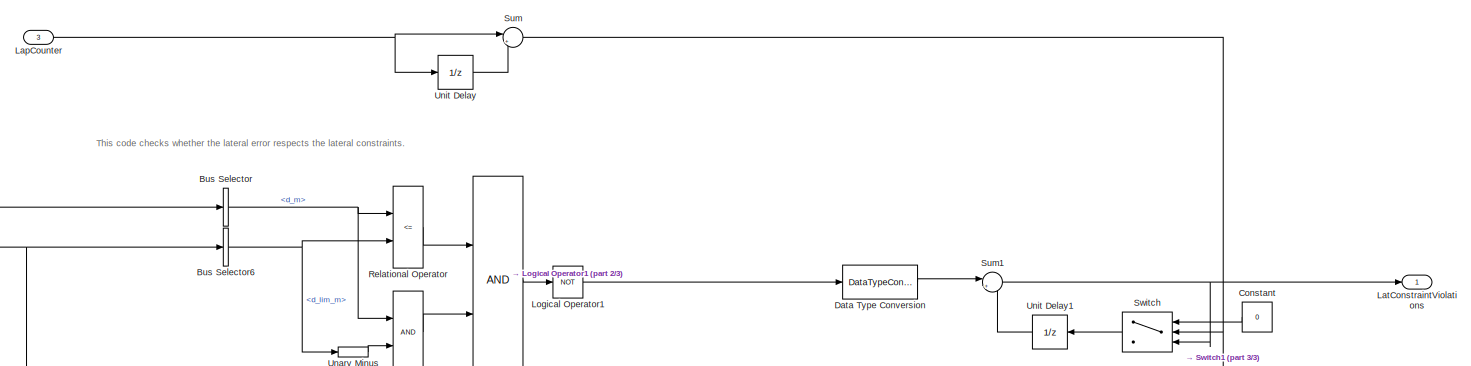
[diagram: EvaluateConstraintViolations - part 1/3, full width, top band]
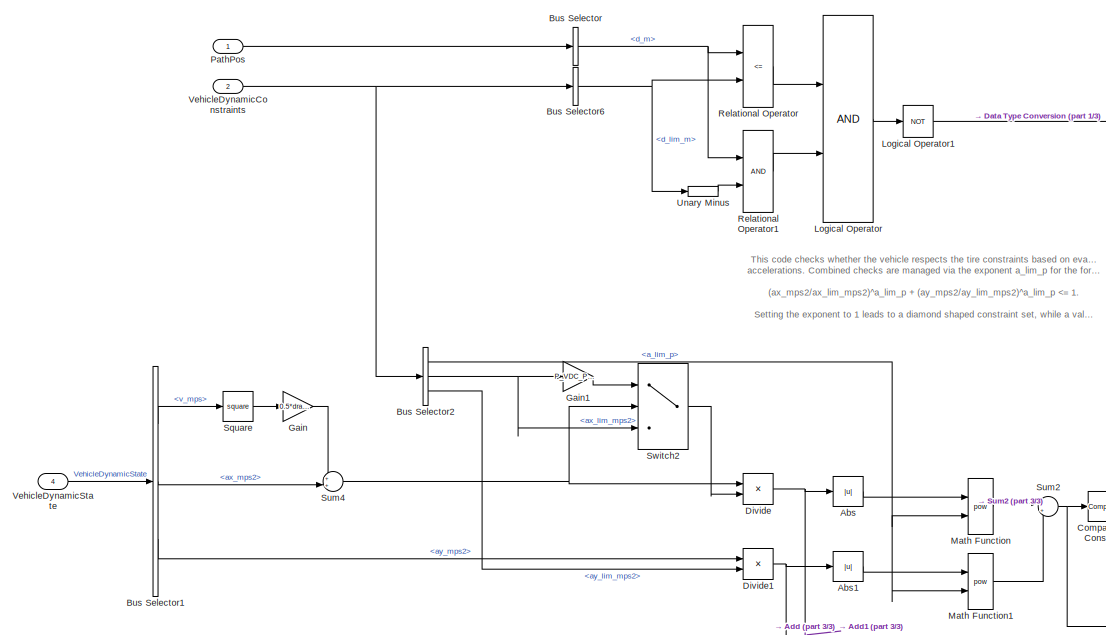
[diagram: EvaluateConstraintViolations - part 2/3, middle left region]
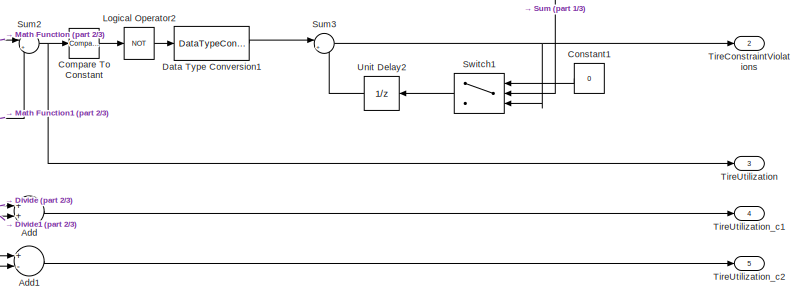
[diagram: EvaluateConstraintViolations - part 3/3, bottom right region]
BLOCK [SubSystem] EvaluateConstraintViolations
  Ports = [4, 5]
  RequestExecContextInheritance = off
BLOCK [Abs] EvaluateConstraintViolations/Abs
  SaturateOnIntegerOverflow = off
BLOCK [Abs] EvaluateConstraintViolations/Abs1
  SaturateOnIntegerOverflow = off
BLOCK [Sum] EvaluateConstraintViolations/Add
  InputSameDT = off
  OutDataTypeStr = Inherit: Inherit via internal rule
  Ports = [2, 1]
  SaturateOnIntegerOverflow = off
BLOCK [Sum] EvaluateConstraintViolations/Add1
  InputSameDT = off
  Inputs = +-
  OutDataTypeStr = Inherit: Inherit via internal rule
  Ports = [2, 1]
  SaturateOnIntegerOverflow = off
BLOCK [BusSelector] EvaluateConstraintViolations/Bus Selector
  OutputAsBus = off
  OutputSignals = d_m
  Ports = [1, 1]
BLOCK [BusSelector] EvaluateConstraintViolations/Bus Selector1
  OutputAsBus = off
  OutputSignals = v_mps,ax_mps2,ay_mps2
  Ports = [1, 3]
BLOCK [BusSelector] EvaluateConstraintViolations/Bus Selector2
  OutputAsBus = off
  OutputSignals = a_lim_p,ax_lim_mps2,ay_lim_mps2
  Ports = [1, 3]
BLOCK [BusSelector] EvaluateConstraintViolations/Bus Selector6
  OutputAsBus = off
  OutputSignals = d_lim_m
  Ports = [1, 1]
BLOCK [Reference] EvaluateConstraintViolations/Compare To Constant  REF=simulink/Logic and Bit
Operations/Compare
To Constant
  Ports = [1, 1]
  SourceBlock = simulink/Logic and Bit\nOperations/Compare\nTo Constant
  SourceProductBaseCode = SL
  SourceProductName = Simulink
  SourceType = Compare To Constant
BLOCK [Constant] EvaluateConstraintViolations/Constant
  Value = 0
BLOCK [Constant] EvaluateConstraintViolations/Constant1
  Value = 0
BLOCK [DataTypeConversion] EvaluateConstraintViolations/Data Type Conversion
  RndMeth = Floor
  SaturateOnIntegerOverflow = off
BLOCK [DataTypeConversion] EvaluateConstraintViolations/Data Type Conversion1
  RndMeth = Floor
  SaturateOnIntegerOverflow = off
BLOCK [Product] EvaluateConstraintViolations/Divide
  InputSameDT = off
  Inputs = */
  OutDataTypeStr = Inherit: Inherit via internal rule
  Ports = [2, 1]
  RndMeth = Floor
  SaturateOnIntegerOverflow = off
BLOCK [Product] EvaluateConstraintViolations/Divide1
  InputSameDT = off
  Inputs = */
  OutDataTypeStr = Inherit: Inherit via internal rule
  Ports = [2, 1]
  RndMeth = Floor
  SaturateOnIntegerOverflow = off
BLOCK [Gain] EvaluateConstraintViolations/Gain
  Gain = 0.5*drag_coefficient*roh_air/vehiclemass_kg
  OutDataTypeStr = Inherit: Inherit via internal rule
  ParamDataTypeStr = Inherit: Inherit via internal rule
  SaturateOnIntegerOverflow = off
BLOCK [Gain] EvaluateConstraintViolations/Gain1
  Gain = P_VDC_PositiveAxLimScale
  OutDataTypeStr = Inherit: Inherit via internal rule
  ParamDataTypeStr = Inherit: Inherit via internal rule
  SaturateOnIntegerOverflow = off
BLOCK [Inport] EvaluateConstraintViolations/LapCounter
  IconDisplay = Port number
  Port = 3
BLOCK [Outport] EvaluateConstraintViolations/LatConstraintViolations
  IconDisplay = Port number
BLOCK [Logic] EvaluateConstraintViolations/Logical Operator
  AllPortsSameDT = off
  OutDataTypeStr = boolean
  Ports = [2, 1]
BLOCK [Logic] EvaluateConstraintViolations/Logical Operator1
  AllPortsSameDT = off
  Inputs = 1
  Operator = NOT
  OutDataTypeStr = boolean
  Ports = [1, 1]
BLOCK [Logic] EvaluateConstraintViolations/Logical Operator2
  AllPortsSameDT = off
  Inputs = 1
  Operator = NOT
  OutDataTypeStr = boolean
  Ports = [1, 1]
BLOCK [Math] EvaluateConstraintViolations/Math Function
  Operator = pow
  Ports = [2, 1]
BLOCK [Math] EvaluateConstraintViolations/Math Function1
  Operator = pow
  Ports = [2, 1]
BLOCK [Inport] EvaluateConstraintViolations/PathPos
  IconDisplay = Port number
BLOCK [RelationalOperator] EvaluateConstraintViolations/Relational Operator
  InputSameDT = off
  Operator = <=
  OutDataTypeStr = boolean
  Ports = [2, 1]
  RndMeth = Simplest
BLOCK [RelationalOperator] EvaluateConstraintViolations/Relational Operator1
  InputSameDT = off
  OutDataTypeStr = boolean
  Ports = [2, 1]
  RndMeth = Simplest
BLOCK [Math] EvaluateConstraintViolations/Square
  Operator = square
  Ports = [1, 1]
BLOCK [Sum] EvaluateConstraintViolations/Sum
  IconShape = round
  InputSameDT = off
  Inputs = |+-
  OutDataTypeStr = Inherit: Inherit via internal rule
  Ports = [2, 1]
  SaturateOnIntegerOverflow = off
BLOCK [Sum] EvaluateConstraintViolations/Sum1
  IconShape = round
  InputSameDT = off
  Inputs = |++
  OutDataTypeStr = Inherit: Inherit via internal rule
  Ports = [2, 1]
  SaturateOnIntegerOverflow = off
BLOCK [Sum] EvaluateConstraintViolations/Sum2
  IconShape = round
  InputSameDT = off
  Inputs = |++
  OutDataTypeStr = Inherit: Inherit via internal rule
  Ports = [2, 1]
  SaturateOnIntegerOverflow = off
BLOCK [Sum] EvaluateConstraintViolations/Sum3
  IconShape = round
  InputSameDT = off
  Inputs = |++
  OutDataTypeStr = Inherit: Inherit via internal rule
  Ports = [2, 1]
  SaturateOnIntegerOverflow = off
BLOCK [Sum] EvaluateConstraintViolations/Sum4
  IconShape = round
  InputSameDT = off
  Inputs = ++|
  OutDataTypeStr = Inherit: Inherit via internal rule
  Ports = [2, 1]
  SaturateOnIntegerOverflow = off
BLOCK [Switch] EvaluateConstraintViolations/Switch
  Criteria = u2 > Threshold
  InputSameDT = off
  SaturateOnIntegerOverflow = off
BLOCK [Switch] EvaluateConstraintViolations/Switch1
  Criteria = u2 > Threshold
  InputSameDT = off
  SaturateOnIntegerOverflow = off
BLOCK [Switch] EvaluateConstraintViolations/Switch2
  Criteria = u2 > Threshold
  InputSameDT = off
  SaturateOnIntegerOverflow = off
BLOCK [Outport] EvaluateConstraintViolations/TireConstraintViolations
  IconDisplay = Port number
  Port = 2
BLOCK [Outport] EvaluateConstraintViolations/TireUtilization
  IconDisplay = Port number
  Port = 3
BLOCK [Outport] EvaluateConstraintViolations/TireUtilization_c1
  IconDisplay = Port number
  Port = 4
BLOCK [Outport] EvaluateConstraintViolations/TireUtilization_c2
  IconDisplay = Port number
  Port = 5
BLOCK [UnaryMinus] EvaluateConstraintViolations/Unary Minus
BLOCK [UnitDelay] EvaluateConstraintViolations/Unit Delay
  InputProcessing = Elements as channels (sample based)
  SampleTime = -1
BLOCK [UnitDelay] EvaluateConstraintViolations/Unit Delay1
  InputProcessing = Elements as channels (sample based)
  SampleTime = -1
BLOCK [UnitDelay] EvaluateConstraintViolations/Unit Delay2
  InputProcessing = Elements as channels (sample based)
  SampleTime = -1
BLOCK [Inport] EvaluateConstraintViolations/VehicleDynamicConstraints
  IconDisplay = Port number
  Port = 2
BLOCK [Inport] EvaluateConstraintViolations/VehicleDynamicState
  IconDisplay = Port number
  OutDataTypeStr = Bus: VehicleDynamicState
  Port = 4
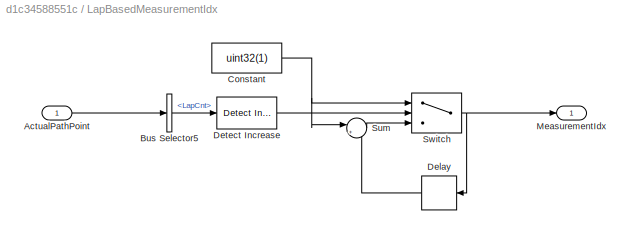
BLOCK [SubSystem] LapBasedMeasurementIdx
  Ports = [1, 1]
  RequestExecContextInheritance = off
BLOCK [Inport] LapBasedMeasurementIdx/ActualPathPoint
  IconDisplay = Port number
BLOCK [BusSelector] LapBasedMeasurementIdx/Bus Selector5
  OutputAsBus = off
  OutputSignals = LapCnt
  Ports = [1, 1]
BLOCK [Constant] LapBasedMeasurementIdx/Constant
  Value = uint32(1)
BLOCK [Delay] LapBasedMeasurementIdx/Delay
  DelayLength = 1
  InitialCondition = uint32(0)
  InputPortMap = u0
  Ports = [1, 1]
BLOCK [Reference] LapBasedMeasurementIdx/Detect Increase  REF=simulink/Logic and Bit
Operations/Detect
Increase
  Ports = [1, 1]
  SourceBlock = simulink/Logic and Bit\nOperations/Detect\nIncrease
  SourceProductBaseCode = SL
  SourceProductName = Simulink
  SourceType = Detect Increase
BLOCK [Outport] LapBasedMeasurementIdx/MeasurementIdx
  IconDisplay = Port number
  OutDataTypeStr = uint32
BLOCK [Sum] LapBasedMeasurementIdx/Sum
  IconShape = round
  InputSameDT = off
  Inputs = |++
  OutDataTypeStr = Inherit: Inherit via internal rule
  Ports = [2, 1]
  SaturateOnIntegerOverflow = off
BLOCK [Switch] LapBasedMeasurementIdx/Switch
  Criteria = u2 > Threshold
  InputSameDT = off
  SaturateOnIntegerOverflow = off
BLOCK [SubSystem] NumericalDifferentiation1
  Ports = [1, 1]
  RequestExecContextInheritance = off
BLOCK [Outport] NumericalDifferentiation1/Derivative
  IconDisplay = Port number
BLOCK [Reference] NumericalDifferentiation1/Discrete Derivative  REF=simulink/Discrete/Discrete Derivative
  Ports = [1, 1]
  SourceBlock = simulink/Discrete/Discrete Derivative
  SourceProductBaseCode = SL
  SourceProductName = Simulink
  SourceType = Discrete Derivative
BLOCK [Reference] NumericalDifferentiation1/Transfer Fcn First Order  REF=simulink/Discrete/Transfer Fcn
First Order
  Ports = [1, 1]
  SourceBlock = simulink/Discrete/Transfer Fcn\nFirst Order
  SourceProductBaseCode = SL
  SourceProductName = Simulink
  SourceType = First Order Transfer Fcn
BLOCK [Inport] NumericalDifferentiation1/Value
  IconDisplay = Port number
BLOCK [SubSystem] NumericalDifferentiation2
  Ports = [1, 1]
  RequestExecContextInheritance = off
BLOCK [Outport] NumericalDifferentiation2/Derivative
  IconDisplay = Port number
BLOCK [Reference] NumericalDifferentiation2/Discrete Derivative  REF=simulink/Discrete/Discrete Derivative
  Ports = [1, 1]
  SourceBlock = simulink/Discrete/Discrete Derivative
  SourceProductBaseCode = SL
  SourceProductName = Simulink
  SourceType = Discrete Derivative
BLOCK [Reference] NumericalDifferentiation2/Transfer Fcn First Order  REF=simulink/Discrete/Transfer Fcn
First Order
  Ports = [1, 1]
  SourceBlock = simulink/Discrete/Transfer Fcn\nFirst Order
  SourceProductBaseCode = SL
  SourceProductName = Simulink
  SourceType = First Order Transfer Fcn
BLOCK [Inport] NumericalDifferentiation2/Value
  IconDisplay = Port number
BLOCK [SubSystem] NumericalDifferentiation3
  Ports = [1, 1]
  RequestExecContextInheritance = off
BLOCK [Outport] NumericalDifferentiation3/Derivative
  IconDisplay = Port number
BLOCK [Reference] NumericalDifferentiation3/Discrete Derivative  REF=simulink/Discrete/Discrete Derivative
  Ports = [1, 1]
  SourceBlock = simulink/Discrete/Discrete Derivative
  SourceProductBaseCode = SL
  SourceProductName = Simulink
  SourceType = Discrete Derivative
BLOCK [Reference] NumericalDifferentiation3/Transfer Fcn First Order  REF=simulink/Discrete/Transfer Fcn
First Order
  Ports = [1, 1]
  SourceBlock = simulink/Discrete/Transfer Fcn\nFirst Order
  SourceProductBaseCode = SL
  SourceProductName = Simulink
  SourceType = First Order Transfer Fcn
BLOCK [Inport] NumericalDifferentiation3/Value
  IconDisplay = Port number
BLOCK [SubSystem] NumericalDifferentiation4
  Ports = [1, 1]
  RequestExecContextInheritance = off
BLOCK [Outport] NumericalDifferentiation4/Derivative
  IconDisplay = Port number
BLOCK [Reference] NumericalDifferentiation4/Discrete Derivative  REF=simulink/Discrete/Discrete Derivative
  Ports = [1, 1]
  SourceBlock = simulink/Discrete/Discrete Derivative
  SourceProductBaseCode = SL
  SourceProductName = Simulink
  SourceType = Discrete Derivative
BLOCK [Reference] NumericalDifferentiation4/Transfer Fcn First Order  REF=simulink/Discrete/Transfer Fcn
First Order
  Ports = [1, 1]
  SourceBlock = simulink/Discrete/Transfer Fcn\nFirst Order
  SourceProductBaseCode = SL
  SourceProductName = Simulink
  SourceType = First Order Transfer Fcn
BLOCK [Inport] NumericalDifferentiation4/Value
  IconDisplay = Port number
BLOCK [SignalConversion] Signal Conversion
  OverrideOpt = off
BLOCK [SignalConversion] Signal Conversion1
  OverrideOpt = off
BLOCK [SignalConversion] Signal Conversion10
  OverrideOpt = off
BLOCK [SignalConversion] Signal Conversion11
  OverrideOpt = off
BLOCK [SignalConversion] Signal Conversion12
  OverrideOpt = off
BLOCK [SignalConversion] Signal Conversion16
  OverrideOpt = off
BLOCK [SignalConversion] Signal Conversion17
  OverrideOpt = off
BLOCK [SignalConversion] Signal Conversion18
  OverrideOpt = off
BLOCK [SignalConversion] Signal Conversion19
  OverrideOpt = off
BLOCK [SignalConversion] Signal Conversion2
  OverrideOpt = off
BLOCK [SignalConversion] Signal Conversion20
  OverrideOpt = off
BLOCK [SignalConversion] Signal Conversion21
  OverrideOpt = off
BLOCK [SignalConversion] Signal Conversion22
  OverrideOpt = off
BLOCK [SignalConversion] Signal Conversion23
  OverrideOpt = off
BLOCK [SignalConversion] Signal Conversion24
  OverrideOpt = off
BLOCK [SignalConversion] Signal Conversion25
  OverrideOpt = off
BLOCK [SignalConversion] Signal Conversion26
  OverrideOpt = off
BLOCK [SignalConversion] Signal Conversion27
  OverrideOpt = off
BLOCK [SignalConversion] Signal Conversion28
  OverrideOpt = off
BLOCK [SignalConversion] Signal Conversion3
  OverrideOpt = off
BLOCK [SignalConversion] Signal Conversion4
  OverrideOpt = off
BLOCK [SignalConversion] Signal Conversion5
  OverrideOpt = off
BLOCK [SignalConversion] Signal Conversion6
  OverrideOpt = off
BLOCK [SignalConversion] Signal Conversion7
  OverrideOpt = off
BLOCK [SignalConversion] Signal Conversion8
  OverrideOpt = off
BLOCK [SignalConversion] Signal Conversion9
  OverrideOpt = off
BLOCK [Sum] Sum2
  IconShape = round
  InputSameDT = off
  Inputs = -+|
  OutDataTypeStr = Inherit: Inherit via internal rule
  Ports = [2, 1]
  SaturateOnIntegerOverflow = off
BLOCK [Sum] Sum3
  IconShape = round
  InputSameDT = off
  Inputs = -+|
  OutDataTypeStr = Inherit: Inherit via internal rule
  Ports = [2, 1]
  SaturateOnIntegerOverflow = off
BLOCK [Inport] VehicleControl
  IconDisplay = Port number
  OutDataTypeStr = Bus: VehicleControl
  Port = 5
BLOCK [Inport] VehicleDynamicConstraints
  IconDisplay = Port number
  OutDataTypeStr = Bus: VehicleDynamicConstraints
BLOCK [Inport] VehicleDynamicState
  IconDisplay = Port number
  OutDataTypeStr = Bus: VehicleDynamicState
  Port = 2
BLOCK [Outport] mvdc_trajectory_driver_perf
  IconDisplay = Port number
  OutDataTypeStr = Bus: mvdc_trajectory_driver_perf
ANNOTATION (root): Author: Alexander Wischnewski (<email>) Chair of Automatic Control at TU Munich Description: Analyzes several performance signals of the vehicle and evaluates these within the time frame of one lap. Inputs: VehicleDynamicConstraints Tire limits and lateral error limits VehicleDynamicState Fused state vector of the vehicle ( position, velocities, acceleration, e.g. ) ActualPathPos Vehicle position ...<+188ch>
ANNOTATION (root): calculate the RMS mean and peak values of several trajectory deviations
ANNOTATION (root): calculate the time for which the car is already on the same lap
ANNOTATION EvaluateConstraintViolations: This code checks whether the lateral error respects the lateral constraints.
ANNOTATION EvaluateConstraintViolations: This code checks whether the vehicle respects the tire constraints based on evaluation of the accelerations. Combined checks are managed via the exponent a_lim_p for the formula: (ax_mps2/ax_lim_mps2)^a_lim_p + (ay_mps2/ay_lim_mps2)^a_lim_p <= 1. Setting the exponent to 1 leads to a diamond shaped constraint set, while a value of 2 leads to a circular constraint set. Note that the forces to overco...<+153ch>
NET ActualPathPos:1 -> Bus Creator1:2, Bus Selector2:1, EvaluateConstraintViolations:1
NET ActualTrajectoryPoint:1 -> Bus Selector1:1, Bus Selector4:1, Bus Selector5:1, Bus Selector6:1, LapBasedMeasurementIdx:1
LINE Bus Creator1:1 -> ControllerLearning_Send:1
LINE Bus Creator:1 -> mvdc_trajectory_driver_perf:1
LINE Bus Selector1:1 -> CalcLapTime:1
NET Bus Selector2:1 -> CalcPeak:1, CalcRMS:1, Signal Conversion1:1
NET Bus Selector2:2 -> CalcPeak1:1, CalcRMS1:1, Signal Conversion3:1
LINE Bus Selector3:1 -> Sum2:1
LINE Bus Selector3:2 -> Sum3:1
LINE Bus Selector4:1 -> Sum2:2
LINE Bus Selector4:2 -> Sum3:2
LINE Bus Selector5:1 -> Signal Conversion17:1
LINE Bus Selector6:1 -> EvaluateConstraintViolations:3
LINE Bus Selector7:1 -> NumericalDifferentiation3:1
LINE Bus Selector7:2 -> NumericalDifferentiation4:1
LINE Bus Selector:1 -> NumericalDifferentiation1:1
LINE Bus Selector:2 -> NumericalDifferentiation2:1
NET CalcLapTime/Constant1:1 -> CalcLapTime/Discrete-Time Integrator:1, CalcLapTime/Discrete-Time Integrator:3
LINE CalcLapTime/Discrete-Time Integrator:1 -> CalcLapTime/ActualLapTime_s:1
NET CalcLapTime/LapCounter:1 -> CalcLapTime/Sum:1, CalcLapTime/Unit Delay:1
LINE CalcLapTime/Sum:1 -> CalcLapTime/Discrete-Time Integrator:2
LINE CalcLapTime/Unit Delay:1 -> CalcLapTime/Sum:2
NET CalcLapTime:1 -> CalcPeak1:2, CalcPeak2:2, CalcPeak3:2, CalcPeak4:2, CalcPeak5:2, CalcPeak6:2, CalcPeak7:2, CalcPeak:2, CalcRMS1:2, CalcRMS2:2, CalcRMS3:2, CalcRMS4:2, CalcRMS5:2, CalcRMS6:2, CalcRMS7:2, CalcRMS:2, Signal Conversion:1
LINE CalcPeak1:1 -> Signal Conversion10:1
LINE CalcPeak2:1 -> Signal Conversion11:1
LINE CalcPeak3:1 -> Signal Conversion12:1
LINE CalcPeak4:1 -> Signal Conversion19:1
LINE CalcPeak5:1 -> Signal Conversion22:1
LINE CalcPeak6:1 -> Signal Conversion25:1
LINE CalcPeak7:1 -> Signal Conversion28:1
LINE CalcPeak:1 -> Signal Conversion9:1
LINE CalcRMS1:1 -> Signal Conversion4:1
LINE CalcRMS2:1 -> Signal Conversion6:1
LINE CalcRMS3:1 -> Signal Conversion8:1
LINE CalcRMS4:1 -> Signal Conversion16:1
LINE CalcRMS5:1 -> Signal Conversion20:1
LINE CalcRMS6:1 -> Signal Conversion23:1
LINE CalcRMS7:1 -> Signal Conversion26:1
LINE CalcRMS:1 -> Signal Conversion2:1
LINE EvaluateConstraintViolations/Abs1:1 -> EvaluateConstraintViolations/Math Function1:1
LINE EvaluateConstraintViolations/Abs:1 -> EvaluateConstraintViolations/Math Function:1
LINE EvaluateConstraintViolations/Add1:1 -> EvaluateConstraintViolations/TireUtilization_c2:1
LINE EvaluateConstraintViolations/Add:1 -> EvaluateConstraintViolations/TireUtilization_c1:1
LINE EvaluateConstraintViolations/Bus Selector1:1 -> EvaluateConstraintViolations/Square:1
LINE EvaluateConstraintViolations/Bus Selector1:2 -> EvaluateConstraintViolations/Sum4:2
LINE EvaluateConstraintViolations/Bus Selector1:3 -> EvaluateConstraintViolations/Divide1:1
NET EvaluateConstraintViolations/Bus Selector2:1 -> EvaluateConstraintViolations/Math Function1:2, EvaluateConstraintViolations/Math Function:2
NET EvaluateConstraintViolations/Bus Selector2:2 -> EvaluateConstraintViolations/Gain1:1, EvaluateConstraintViolations/Switch2:3
LINE EvaluateConstraintViolations/Bus Selector2:3 -> EvaluateConstraintViolations/Divide1:2
NET EvaluateConstraintViolations/Bus Selector6:1 -> EvaluateConstraintViolations/Relational Operator:2, EvaluateConstraintViolations/Unary Minus:1
NET EvaluateConstraintViolations/Bus Selector:1 -> EvaluateConstraintViolations/Relational Operator1:1, EvaluateConstraintViolations/Relational Operator:1
LINE EvaluateConstraintViolations/Compare To Constant:1 -> EvaluateConstraintViolations/Logical Operator2:1
LINE EvaluateConstraintViolations/Constant1:1 -> EvaluateConstraintViolations/Switch1:1
LINE EvaluateConstraintViolations/Constant:1 -> EvaluateConstraintViolations/Switch:1
LINE EvaluateConstraintViolations/Data Type Conversion1:1 -> EvaluateConstraintViolations/Sum3:1
LINE EvaluateConstraintViolations/Data Type Conversion:1 -> EvaluateConstraintViolations/Sum1:1
NET EvaluateConstraintViolations/Divide1:1 -> EvaluateConstraintViolations/Abs1:1, EvaluateConstraintViolations/Add1:2, EvaluateConstraintViolations/Add:2
NET EvaluateConstraintViolations/Divide:1 -> EvaluateConstraintViolations/Abs:1, EvaluateConstraintViolations/Add1:1, EvaluateConstraintViolations/Add:1
LINE EvaluateConstraintViolations/Gain1:1 -> EvaluateConstraintViolations/Switch2:1
LINE EvaluateConstraintViolations/Gain:1 -> EvaluateConstraintViolations/Sum4:1
NET EvaluateConstraintViolations/LapCounter:1 -> EvaluateConstraintViolations/Sum:1, EvaluateConstraintViolations/Unit Delay:1
LINE EvaluateConstraintViolations/Logical Operator1:1 -> EvaluateConstraintViolations/Data Type Conversion:1
LINE EvaluateConstraintViolations/Logical Operator2:1 -> EvaluateConstraintViolations/Data Type Conversion1:1
LINE EvaluateConstraintViolations/Logical Operator:1 -> EvaluateConstraintViolations/Logical Operator1:1
LINE EvaluateConstraintViolations/Math Function1:1 -> EvaluateConstraintViolations/Sum2:2
LINE EvaluateConstraintViolations/Math Function:1 -> EvaluateConstraintViolations/Sum2:1
LINE EvaluateConstraintViolations/PathPos:1 -> EvaluateConstraintViolations/Bus Selector:1
LINE EvaluateConstraintViolations/Relational Operator1:1 -> EvaluateConstraintViolations/Logical Operator:2
LINE EvaluateConstraintViolations/Relational Operator:1 -> EvaluateConstraintViolations/Logical Operator:1
LINE EvaluateConstraintViolations/Square:1 -> EvaluateConstraintViolations/Gain:1
NET EvaluateConstraintViolations/Sum1:1 -> EvaluateConstraintViolations/LatConstraintViolations:1, EvaluateConstraintViolations/Switch:3
NET EvaluateConstraintViolations/Sum2:1 -> EvaluateConstraintViolations/Compare To Constant:1, EvaluateConstraintViolations/TireUtilization:1
NET EvaluateConstraintViolations/Sum3:1 -> EvaluateConstraintViolations/Switch1:3, EvaluateConstraintViolations/TireConstraintViolations:1
NET EvaluateConstraintViolations/Sum4:1 -> EvaluateConstraintViolations/Divide:1, EvaluateConstraintViolations/Switch2:2
NET EvaluateConstraintViolations/Sum:1 -> EvaluateConstraintViolations/Switch1:2, EvaluateConstraintViolations/Switch:2
LINE EvaluateConstraintViolations/Switch1:1 -> EvaluateConstraintViolations/Unit Delay2:1
LINE EvaluateConstraintViolations/Switch2:1 -> EvaluateConstraintViolations/Divide:2
LINE EvaluateConstraintViolations/Switch:1 -> EvaluateConstraintViolations/Unit Delay1:1
LINE EvaluateConstraintViolations/Unary Minus:1 -> EvaluateConstraintViolations/Relational Operator1:2
LINE EvaluateConstraintViolations/Unit Delay1:1 -> EvaluateConstraintViolations/Sum1:2
LINE EvaluateConstraintViolations/Unit Delay2:1 -> EvaluateConstraintViolations/Sum3:2
LINE EvaluateConstraintViolations/Unit Delay:1 -> EvaluateConstraintViolations/Sum:2
NET EvaluateConstraintViolations/VehicleDynamicConstraints:1 -> EvaluateConstraintViolations/Bus Selector2:1, EvaluateConstraintViolations/Bus Selector6:1
LINE EvaluateConstraintViolations/VehicleDynamicState:1 -> EvaluateConstraintViolations/Bus Selector1:1
LINE EvaluateConstraintViolations:1 -> Bus Creator:26
LINE EvaluateConstraintViolations:2 -> Bus Creator:27
LINE EvaluateConstraintViolations:3 -> Bus Creator:28
LINE EvaluateConstraintViolations:4 -> Bus Creator:29
LINE EvaluateConstraintViolations:5 -> Bus Creator:30
LINE LapBasedMeasurementIdx/ActualPathPoint:1 -> LapBasedMeasurementIdx/Bus Selector5:1
LINE LapBasedMeasurementIdx/Bus Selector5:1 -> LapBasedMeasurementIdx/Detect Increase:1
NET LapBasedMeasurementIdx/Constant:1 -> LapBasedMeasurementIdx/Sum:1, LapBasedMeasurementIdx/Switch:1
LINE LapBasedMeasurementIdx/Delay:1 -> LapBasedMeasurementIdx/Sum:2
LINE LapBasedMeasurementIdx/Detect Increase:1 -> LapBasedMeasurementIdx/Switch:2
LINE LapBasedMeasurementIdx/Sum:1 -> LapBasedMeasurementIdx/Switch:3
NET LapBasedMeasurementIdx/Switch:1 -> LapBasedMeasurementIdx/Delay:1, LapBasedMeasurementIdx/MeasurementIdx:1
LINE LapBasedMeasurementIdx:1 -> Bus Creator1:3
LINE NumericalDifferentiation1/Discrete Derivative:1 -> NumericalDifferentiation1/Transfer Fcn First Order:1
LINE NumericalDifferentiation1/Transfer Fcn First Order:1 -> NumericalDifferentiation1/Derivative:1
LINE NumericalDifferentiation1/Value:1 -> NumericalDifferentiation1/Discrete Derivative:1
NET NumericalDifferentiation1:1 -> CalcPeak4:1, CalcRMS4:1, Signal Conversion18:1
LINE NumericalDifferentiation2/Discrete Derivative:1 -> NumericalDifferentiation2/Transfer Fcn First Order:1
LINE NumericalDifferentiation2/Transfer Fcn First Order:1 -> NumericalDifferentiation2/Derivative:1
LINE NumericalDifferentiation2/Value:1 -> NumericalDifferentiation2/Discrete Derivative:1
NET NumericalDifferentiation2:1 -> CalcPeak5:1, CalcRMS5:1, Signal Conversion21:1
LINE NumericalDifferentiation3/Discrete Derivative:1 -> NumericalDifferentiation3/Transfer Fcn First Order:1
LINE NumericalDifferentiation3/Transfer Fcn First Order:1 -> NumericalDifferentiation3/Derivative:1
LINE NumericalDifferentiation3/Value:1 -> NumericalDifferentiation3/Discrete Derivative:1
NET NumericalDifferentiation3:1 -> CalcPeak6:1, CalcRMS6:1, Signal Conversion24:1
LINE NumericalDifferentiation4/Discrete Derivative:1 -> NumericalDifferentiation4/Transfer Fcn First Order:1
LINE NumericalDifferentiation4/Transfer Fcn First Order:1 -> NumericalDifferentiation4/Derivative:1
LINE NumericalDifferentiation4/Value:1 -> NumericalDifferentiation4/Discrete Derivative:1
NET NumericalDifferentiation4:1 -> CalcPeak7:1, CalcRMS7:1, Signal Conversion27:1
LINE Signal Conversion10:1 -> Bus Creator:7
LINE Signal Conversion11:1 -> Bus Creator:10
LINE Signal Conversion12:1 -> Bus Creator:13
LINE Signal Conversion16:1 -> Bus Creator:16
LINE Signal Conversion17:1 -> Bus Creator1:4
LINE Signal Conversion18:1 -> Bus Creator:14
LINE Signal Conversion19:1 -> Bus Creator:15
LINE Signal Conversion1:1 -> Bus Creator:2
LINE Signal Conversion20:1 -> Bus Creator:19
LINE Signal Conversion21:1 -> Bus Creator:17
LINE Signal Conversion22:1 -> Bus Creator:18
LINE Signal Conversion23:1 -> Bus Creator:22
LINE Signal Conversion24:1 -> Bus Creator:20
LINE Signal Conversion25:1 -> Bus Creator:21
LINE Signal Conversion26:1 -> Bus Creator:25
LINE Signal Conversion27:1 -> Bus Creator:23
LINE Signal Conversion28:1 -> Bus Creator:24
LINE Signal Conversion2:1 -> Bus Creator:3
LINE Signal Conversion3:1 -> Bus Creator:5
LINE Signal Conversion4:1 -> Bus Creator:6
LINE Signal Conversion5:1 -> Bus Creator:8
LINE Signal Conversion6:1 -> Bus Creator:9
LINE Signal Conversion7:1 -> Bus Creator:11
LINE Signal Conversion8:1 -> Bus Creator:12
LINE Signal Conversion9:1 -> Bus Creator:4
LINE Signal Conversion:1 -> Bus Creator:1
NET Sum2:1 -> CalcPeak2:1, CalcRMS2:1, Signal Conversion5:1
NET Sum3:1 -> CalcPeak3:1, CalcRMS3:1, Signal Conversion7:1
LINE VehicleControl:1 -> Bus Selector7:1
LINE VehicleDynamicConstraints:1 -> EvaluateConstraintViolations:2
NET VehicleDynamicState:1 -> Bus Creator1:1, Bus Selector3:1, Bus Selector:1, EvaluateConstraintViolations:4
note: NET lines group one-source signal fan-out (src -> all destinations, sorted); 1:1 wires keep LINE
